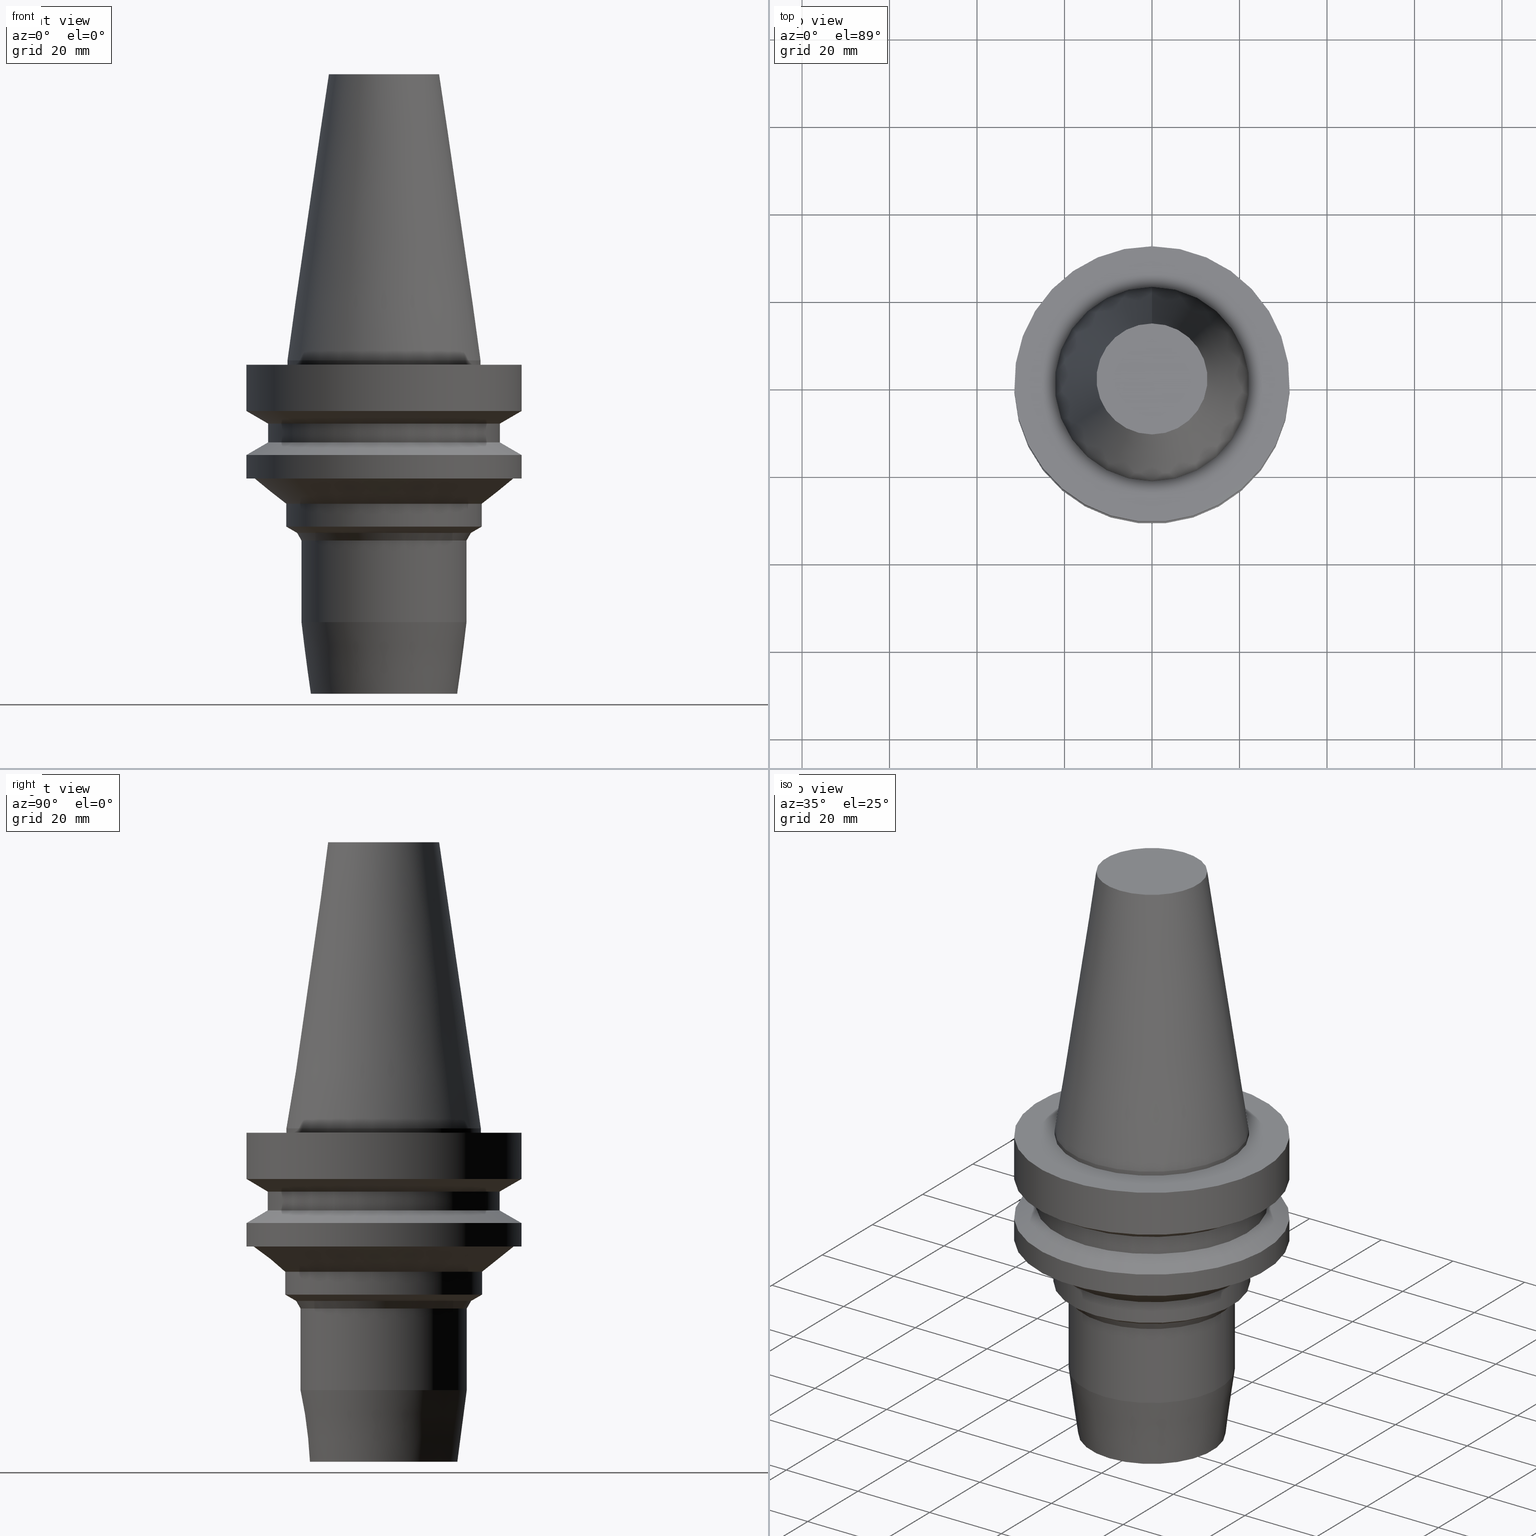
[diagram: canonical four-view strip — front | top / right | iso, engineering-drawing reading convention]
A machine part, canonical four-view strip (front | top / right | iso — engineering-drawing reading convention). The complete STEP part file that produces these views, byte-faithful:
ISO-10303-21;
HEADER;
FILE_DESCRIPTION((''),'1');
FILE_NAME('V:/90_\X2\53D65F9730C730FC30BF\X0\/00_\X2\6DE18DEF30C730FC30BF\X0\/ALL/BBT-BKUS\X2\FF76FF80FF9BFF78FF9E752852A05DE556F3\X0\201801/BBT40-HDC/BBT40-HDC.625-3.stp','2018-02-07T05:08:07',(''),(''),'Spatial Interop R21 SP3','Kubotek KeyCreator 2011 V10.0.2 (22737)',' ');
FILE_SCHEMA(('automotive_design'));
ENDSEC;
DATA;
#1=MECHANICAL_DESIGN_GEOMETRIC_PRESENTATION_REPRESENTATION(' ',(#10,#11,#12,#13,#14,#15,#16,#17,#18,#19,#20,#21,#22,#23,#24,#25,#26,#27,#28,#29,#30,#31,#32,#33,#34,#35,#36,#37,#38,#39,#40,#41,#42,#43),#6);
#2=PRODUCT_DEFINITION_CONTEXT('',#44,'design');
#3=APPLICATION_PROTOCOL_DEFINITION('INTERNATIONAL STANDARD','automotive_design',1994,#44);
#4=PRODUCT_CATEGORY_RELATIONSHIP('NONE','NONE',#45,#46);
#5=SHAPE_DEFINITION_REPRESENTATION(#47,#48);
#6= (GEOMETRIC_REPRESENTATION_CONTEXT(3)GLOBAL_UNCERTAINTY_ASSIGNED_CONTEXT((#51))GLOBAL_UNIT_ASSIGNED_CONTEXT((#53,#54,#55))REPRESENTATION_CONTEXT('NONE','WORKSPACE'));
#10=STYLED_ITEM('',(#57,#58),#59);
#11=STYLED_ITEM('',(#60,#61),#62);
#12=STYLED_ITEM('',(#63,#64),#65);
#13=STYLED_ITEM('',(#66,#67),#68);
#14=STYLED_ITEM('',(#69,#70),#71);
#15=STYLED_ITEM('',(#72),#73);
#16=STYLED_ITEM('',(#74),#75);
#17=STYLED_ITEM('',(#76),#77);
#18=STYLED_ITEM('',(#78),#79);
#19=STYLED_ITEM('',(#80),#81);
#20=STYLED_ITEM('',(#82),#83);
#21=STYLED_ITEM('',(#84,#85),#86);
#22=STYLED_ITEM('',(#87,#88),#89);
#23=STYLED_ITEM('',(#90,#91),#92);
#24=STYLED_ITEM('',(#93),#94);
#25=STYLED_ITEM('',(#95,#96),#97);
#26=STYLED_ITEM('',(#98),#99);
#27=STYLED_ITEM('',(#100,#101),#102);
#28=STYLED_ITEM('',(#103,#104),#105);
#29=STYLED_ITEM('',(#106),#107);
#30=STYLED_ITEM('',(#108,#109),#110);
#31=STYLED_ITEM('',(#111,#112),#113);
#32=STYLED_ITEM('',(#114),#115);
#33=STYLED_ITEM('',(#116),#117);
#34=STYLED_ITEM('',(#118),#119);
#35=STYLED_ITEM('',(#120),#121);
#36=STYLED_ITEM('',(#122,#123),#124);
#37=STYLED_ITEM('',(#125,#126),#127);
#38=STYLED_ITEM('',(#128,#129),#130);
#39=STYLED_ITEM('',(#131),#132);
#40=STYLED_ITEM('',(#133),#134);
#41=STYLED_ITEM('',(#135,#136),#137);
#42=STYLED_ITEM('',(#138),#139);
#43=STYLED_ITEM('',(#140,#141),#142);
#44=APPLICATION_CONTEXT(' ');
#45=PRODUCT_CATEGORY('part','NONE');
#46=PRODUCT_RELATED_PRODUCT_CATEGORY('detail',' ',(#143));
#47=PRODUCT_DEFINITION_SHAPE('NONE','NONE',#144);
#48=ADVANCED_BREP_SHAPE_REPRESENTATION('Unnamed[1]',(#142,#145),#6);
#51=UNCERTAINTY_MEASURE_WITH_UNIT(LENGTH_MEASURE(1.0E-006),#53,'','');
#53= (CONVERSION_BASED_UNIT('MILLIMETRE',#148)LENGTH_UNIT()NAMED_UNIT(#151));
#54= (NAMED_UNIT(#153)PLANE_ANGLE_UNIT()SI_UNIT($,.RADIAN.));
#55= (NAMED_UNIT(#153)SOLID_ANGLE_UNIT()SI_UNIT($,.STERADIAN.));
#57=PRESENTATION_STYLE_ASSIGNMENT((#159));
#58=PRESENTATION_STYLE_ASSIGNMENT((#160));
#59=ADVANCED_FACE('Unnamed[1]',(#161,#162),#163,.T.);
#60=PRESENTATION_STYLE_ASSIGNMENT((#164));
#61=PRESENTATION_STYLE_ASSIGNMENT((#165));
#62=ADVANCED_FACE('Unnamed[1]',(#166,#167),#168,.T.);
#63=PRESENTATION_STYLE_ASSIGNMENT((#169));
#64=PRESENTATION_STYLE_ASSIGNMENT((#170));
#65=ADVANCED_FACE('Unnamed[1]',(#171,#172),#173,.T.);
#66=PRESENTATION_STYLE_ASSIGNMENT((#174));
#67=PRESENTATION_STYLE_ASSIGNMENT((#175));
#68=ADVANCED_FACE('Unnamed[1]',(#176,#177),#178,.T.);
#69=PRESENTATION_STYLE_ASSIGNMENT((#179));
#70=PRESENTATION_STYLE_ASSIGNMENT((#180));
#71=ADVANCED_FACE('Unnamed[1]',(#181,#182),#183,.T.);
#72=PRESENTATION_STYLE_ASSIGNMENT((#184));
#73=EDGE_CURVE('Unnamed[1]',#185,#185,#186,.T.);
#74=PRESENTATION_STYLE_ASSIGNMENT((#187));
#75=EDGE_CURVE('Unnamed[1]',#188,#188,#189,.T.);
#76=PRESENTATION_STYLE_ASSIGNMENT((#190));
#77=EDGE_CURVE('Unnamed[1]',#191,#191,#192,.T.);
#78=PRESENTATION_STYLE_ASSIGNMENT((#193));
#79=EDGE_CURVE('Unnamed[1]',#194,#194,#195,.T.);
#80=PRESENTATION_STYLE_ASSIGNMENT((#196));
#81=EDGE_CURVE('Unnamed[1]',#197,#197,#198,.T.);
#82=PRESENTATION_STYLE_ASSIGNMENT((#199));
#83=EDGE_CURVE('Unnamed[1]',#200,#200,#201,.T.);
#84=PRESENTATION_STYLE_ASSIGNMENT((#202));
#85=PRESENTATION_STYLE_ASSIGNMENT((#203));
#86=ADVANCED_FACE('Unnamed[1]',(#204,#205),#206,.T.);
#87=PRESENTATION_STYLE_ASSIGNMENT((#207));
#88=PRESENTATION_STYLE_ASSIGNMENT((#208));
#89=ADVANCED_FACE('Unnamed[1]',(#209,#210),#211,.T.);
#90=PRESENTATION_STYLE_ASSIGNMENT((#212));
#91=PRESENTATION_STYLE_ASSIGNMENT((#213));
#92=ADVANCED_FACE('Unnamed[1]',(#214),#215,.T.);
#93=PRESENTATION_STYLE_ASSIGNMENT((#216));
#94=EDGE_CURVE('Unnamed[1]',#217,#217,#218,.T.);
#95=PRESENTATION_STYLE_ASSIGNMENT((#219));
#96=PRESENTATION_STYLE_ASSIGNMENT((#220));
#97=ADVANCED_FACE('Unnamed[1]',(#221,#222),#223,.T.);
#98=PRESENTATION_STYLE_ASSIGNMENT((#224));
#99=EDGE_CURVE('Unnamed[1]',#225,#225,#226,.T.);
#100=PRESENTATION_STYLE_ASSIGNMENT((#227));
#101=PRESENTATION_STYLE_ASSIGNMENT((#228));
#102=ADVANCED_FACE('Unnamed[1]',(#229,#230),#231,.T.);
#103=PRESENTATION_STYLE_ASSIGNMENT((#232));
#104=PRESENTATION_STYLE_ASSIGNMENT((#233));
#105=ADVANCED_FACE('Unnamed[1]',(#234,#235),#236,.T.);
#106=PRESENTATION_STYLE_ASSIGNMENT((#237));
#107=EDGE_CURVE('Unnamed[1]',#238,#238,#239,.T.);
#108=PRESENTATION_STYLE_ASSIGNMENT((#240));
#109=PRESENTATION_STYLE_ASSIGNMENT((#241));
#110=ADVANCED_FACE('Unnamed[1]',(#242),#243,.T.);
#111=PRESENTATION_STYLE_ASSIGNMENT((#244));
#112=PRESENTATION_STYLE_ASSIGNMENT((#245));
#113=ADVANCED_FACE('Unnamed[1]',(#246,#247),#248,.T.);
#114=PRESENTATION_STYLE_ASSIGNMENT((#249));
#115=EDGE_CURVE('Unnamed[1]',#250,#250,#251,.T.);
#116=PRESENTATION_STYLE_ASSIGNMENT((#252));
#117=EDGE_CURVE('Unnamed[1]',#253,#253,#254,.T.);
#118=PRESENTATION_STYLE_ASSIGNMENT((#255));
#119=EDGE_CURVE('Unnamed[1]',#256,#256,#257,.T.);
#120=PRESENTATION_STYLE_ASSIGNMENT((#258));
#121=EDGE_CURVE('Unnamed[1]',#259,#259,#260,.T.);
#122=PRESENTATION_STYLE_ASSIGNMENT((#261));
#123=PRESENTATION_STYLE_ASSIGNMENT((#262));
#124=ADVANCED_FACE('Unnamed[1]',(#263,#264),#265,.T.);
#125=PRESENTATION_STYLE_ASSIGNMENT((#266));
#126=PRESENTATION_STYLE_ASSIGNMENT((#267));
#127=ADVANCED_FACE('Unnamed[1]',(#268,#269),#270,.T.);
#128=PRESENTATION_STYLE_ASSIGNMENT((#271));
#129=PRESENTATION_STYLE_ASSIGNMENT((#272));
#130=ADVANCED_FACE('Unnamed[1]',(#273,#274),#275,.T.);
#131=PRESENTATION_STYLE_ASSIGNMENT((#276));
#132=EDGE_CURVE('Unnamed[1]',#277,#277,#278,.T.);
#133=PRESENTATION_STYLE_ASSIGNMENT((#279));
#134=EDGE_CURVE('Unnamed[1]',#280,#280,#281,.T.);
#135=PRESENTATION_STYLE_ASSIGNMENT((#282));
#136=PRESENTATION_STYLE_ASSIGNMENT((#283));
#137=ADVANCED_FACE('Unnamed[1]',(#284,#285),#286,.T.);
#138=PRESENTATION_STYLE_ASSIGNMENT((#287));
#139=EDGE_CURVE('Unnamed[1]',#288,#288,#289,.T.);
#140=PRESENTATION_STYLE_ASSIGNMENT((#290));
#141=PRESENTATION_STYLE_ASSIGNMENT((#291));
#142=MANIFOLD_SOLID_BREP('Unnamed[1]',#292);
#143=PRODUCT('Unnamed[1]','Unnamed[1]','PART-Unnamed[1]-DESC',(#293));
#144=PRODUCT_DEFINITION('NONE','NONE',#294,#2);
#145=AXIS2_PLACEMENT_3D('',#295,#296,#297);
#148=LENGTH_MEASURE_WITH_UNIT(LENGTH_MEASURE(1.0),#298);
#151=DIMENSIONAL_EXPONENTS(1.0,0.0,0.0,0.0,0.0,0.0,0.0);
#153=DIMENSIONAL_EXPONENTS(0.0,0.0,0.0,0.0,0.0,0.0,0.0);
#159=SURFACE_STYLE_USAGE(.BOTH.,#299);
#160=CURVE_STYLE('',#300,POSITIVE_LENGTH_MEASURE(1000.0),#301);
#161=FACE_BOUND('',#302,.T.);
#162=FACE_OUTER_BOUND('',#303,.T.);
#163=PLANE('',#304);
#164=SURFACE_STYLE_USAGE(.BOTH.,#305);
#165=CURVE_STYLE('',#306,POSITIVE_LENGTH_MEASURE(1000.0),#307);
#166=FACE_BOUND('',#308,.T.);
#167=FACE_BOUND('',#309,.T.);
#168=CYLINDRICAL_SURFACE('',#310,31.5);
#169=SURFACE_STYLE_USAGE(.BOTH.,#311);
#170=CURVE_STYLE('',#312,POSITIVE_LENGTH_MEASURE(1000.0),#313);
#171=FACE_BOUND('',#314,.T.);
#172=FACE_BOUND('',#315,.T.);
#173=CONICAL_SURFACE('',#316,21.2500000000002,1.0471975511966);
#174=SURFACE_STYLE_USAGE(.BOTH.,#317);
#175=CURVE_STYLE('',#318,POSITIVE_LENGTH_MEASURE(1000.0),#319);
#176=FACE_BOUND('',#320,.T.);
#177=FACE_BOUND('',#321,.T.);
#178=CYLINDRICAL_SURFACE('',#322,26.4999999999997);
#179=SURFACE_STYLE_USAGE(.BOTH.,#323);
#180=CURVE_STYLE('',#324,POSITIVE_LENGTH_MEASURE(1000.0),#325);
#181=FACE_BOUND('',#326,.T.);
#182=FACE_BOUND('',#327,.T.);
#183=CONICAL_SURFACE('',#328,17.9227653025982,0.13089969389958);
#184=CURVE_STYLE('',#329,POSITIVE_LENGTH_MEASURE(1000.0),#330);
#185=VERTEX_POINT('',#331);
#186=CIRCLE('',#332,22.225);
#187=CURVE_STYLE('',#333,POSITIVE_LENGTH_MEASURE(1000.0),#334);
#188=VERTEX_POINT('',#335);
#189=CIRCLE('',#336,31.4999999999997);
#190=CURVE_STYLE('',#337,POSITIVE_LENGTH_MEASURE(1000.0),#338);
#191=VERTEX_POINT('',#339);
#192=CIRCLE('',#340,12.6875000000001);
#193=CURVE_STYLE('',#341,POSITIVE_LENGTH_MEASURE(1000.0),#342);
#194=VERTEX_POINT('',#343);
#195=CIRCLE('',#344,31.5000000000004);
#196=CURVE_STYLE('',#345,POSITIVE_LENGTH_MEASURE(1000.0),#346);
#197=VERTEX_POINT('',#347);
#198=CIRCLE('',#348,29.7143593539463);
#199=CURVE_STYLE('',#349,POSITIVE_LENGTH_MEASURE(1000.0),#350);
#200=VERTEX_POINT('',#351);
#201=CIRCLE('',#352,16.8455306051985);
#202=SURFACE_STYLE_USAGE(.BOTH.,#353);
#203=CURVE_STYLE('',#354,POSITIVE_LENGTH_MEASURE(1000.0),#355);
#204=FACE_BOUND('',#356,.T.);
#205=FACE_BOUND('',#357,.T.);
#206=CONICAL_SURFACE('',#358,19.5000000000007,0.523598775600471);
#207=SURFACE_STYLE_USAGE(.BOTH.,#359);
#208=CURVE_STYLE('',#360,POSITIVE_LENGTH_MEASURE(1000.0),#361);
#209=FACE_BOUND('',#362,.T.);
#210=FACE_BOUND('',#363,.T.);
#211=CYLINDRICAL_SURFACE('',#364,22.4999999999983);
#212=SURFACE_STYLE_USAGE(.BOTH.,#365);
#213=CURVE_STYLE('',#366,POSITIVE_LENGTH_MEASURE(1000.0),#367);
#214=FACE_OUTER_BOUND('',#368,.T.);
#215=PLANE('',#369);
#216=CURVE_STYLE('',#370,POSITIVE_LENGTH_MEASURE(1000.0),#371);
#217=VERTEX_POINT('',#372);
#218=CIRCLE('',#373,22.4999999999993);
#219=SURFACE_STYLE_USAGE(.BOTH.,#374);
#220=CURVE_STYLE('',#375,POSITIVE_LENGTH_MEASURE(1000.0),#376);
#221=FACE_BOUND('',#377,.T.);
#222=FACE_BOUND('',#378,.T.);
#223=CYLINDRICAL_SURFACE('',#379,22.225);
#224=CURVE_STYLE('',#380,POSITIVE_LENGTH_MEASURE(1000.0),#381);
#225=VERTEX_POINT('',#382);
#226=CIRCLE('',#383,22.225);
#227=SURFACE_STYLE_USAGE(.BOTH.,#384);
#228=CURVE_STYLE('',#385,POSITIVE_LENGTH_MEASURE(1000.0),#386);
#229=FACE_BOUND('',#387,.T.);
#230=FACE_BOUND('',#388,.T.);
#231=CONICAL_SURFACE('',#389,29.0000000000004,1.04719755119651);
#232=SURFACE_STYLE_USAGE(.BOTH.,#390);
#233=CURVE_STYLE('',#391,POSITIVE_LENGTH_MEASURE(1000.0),#392);
#234=FACE_BOUND('',#393,.T.);
#235=FACE_BOUND('',#394,.T.);
#236=CONICAL_SURFACE('',#395,26.1071796769728,0.895885082770081);
#237=CURVE_STYLE('',#396,POSITIVE_LENGTH_MEASURE(1000.0),#397);
#238=VERTEX_POINT('',#398);
#239=CIRCLE('',#399,22.4999999999973);
#240=SURFACE_STYLE_USAGE(.BOTH.,#400);
#241=CURVE_STYLE('',#401,POSITIVE_LENGTH_MEASURE(1000.0),#402);
#242=FACE_OUTER_BOUND('',#403,.T.);
#243=PLANE('',#404);
#244=SURFACE_STYLE_USAGE(.BOTH.,#405);
#245=CURVE_STYLE('',#406,POSITIVE_LENGTH_MEASURE(1000.0),#407);
#246=FACE_BOUND('',#408,.T.);
#247=FACE_BOUND('',#409,.T.);
#248=CYLINDRICAL_SURFACE('',#410,31.5000000000005);
#249=CURVE_STYLE('',#411,POSITIVE_LENGTH_MEASURE(1000.0),#412);
#250=VERTEX_POINT('',#413);
#251=CIRCLE('',#414,18.9999999999979);
#252=CURVE_STYLE('',#415,POSITIVE_LENGTH_MEASURE(1000.0),#416);
#253=VERTEX_POINT('',#417);
#254=CIRCLE('',#418,26.4999999999994);
#255=CURVE_STYLE('',#419,POSITIVE_LENGTH_MEASURE(1000.0),#420);
#256=VERTEX_POINT('',#421);
#257=CIRCLE('',#422,26.5);
#258=CURVE_STYLE('',#423,POSITIVE_LENGTH_MEASURE(1000.0),#424);
#259=VERTEX_POINT('',#425);
#260=CIRCLE('',#426,31.5000000000007);
#261=SURFACE_STYLE_USAGE(.BOTH.,#427);
#262=CURVE_STYLE('',#428,POSITIVE_LENGTH_MEASURE(1000.0),#429);
#263=FACE_BOUND('',#430,.T.);
#264=FACE_BOUND('',#431,.T.);
#265=CONICAL_SURFACE('',#432,28.9999999999999,1.04719755119657);
#266=SURFACE_STYLE_USAGE(.BOTH.,#433);
#267=CURVE_STYLE('',#434,POSITIVE_LENGTH_MEASURE(1000.0),#435);
#268=FACE_BOUND('',#436,.T.);
#269=FACE_BOUND('',#437,.T.);
#270=CYLINDRICAL_SURFACE('',#438,18.999999999998);
#271=SURFACE_STYLE_USAGE(.BOTH.,#439);
#272=CURVE_STYLE('',#440,POSITIVE_LENGTH_MEASURE(1000.0),#441);
#273=FACE_OUTER_BOUND('',#442,.T.);
#274=FACE_BOUND('',#443,.T.);
#275=PLANE('',#444);
#276=CURVE_STYLE('',#445,POSITIVE_LENGTH_MEASURE(1000.0),#446);
#277=VERTEX_POINT('',#447);
#278=CIRCLE('',#448,31.5000000000004);
#279=CURVE_STYLE('',#449,POSITIVE_LENGTH_MEASURE(1000.0),#450);
#280=VERTEX_POINT('',#451);
#281=CIRCLE('',#452,20.0000000000032);
#282=SURFACE_STYLE_USAGE(.BOTH.,#453);
#283=CURVE_STYLE('',#454,POSITIVE_LENGTH_MEASURE(1000.0),#455);
#284=FACE_BOUND('',#456,.T.);
#285=FACE_BOUND('',#457,.T.);
#286=CONICAL_SURFACE('',#458,17.4562500000001,0.144812498238936);
#287=CURVE_STYLE('',#459,POSITIVE_LENGTH_MEASURE(1000.0),#460);
#288=VERTEX_POINT('',#461);
#289=CIRCLE('',#462,18.9999999999981);
#290=SURFACE_STYLE_USAGE(.BOTH.,#463);
#291=CURVE_STYLE('',#464,POSITIVE_LENGTH_MEASURE(1000.0),#465);
#292=CLOSED_SHELL('',(#110,#137,#97,#130,#62,#124,#68,#102,#113,#59,#105,#89,#65,#86,#127,#71,#92));
#293=PRODUCT_CONTEXT('',#44,'mechanical');
#294=PRODUCT_DEFINITION_FORMATION_WITH_SPECIFIED_SOURCE(' ','NONE',#143,.NOT_KNOWN.);
#295=CARTESIAN_POINT('',(0.0,0.0,0.0));
#296=DIRECTION('',(0.0,0.0,1.0));
#297=DIRECTION('',(1.0,0.0,0.0));
#298= (NAMED_UNIT(#151)LENGTH_UNIT()SI_UNIT(.MILLI.,.METRE.));
#299=SURFACE_SIDE_STYLE('',(#467));
#300=DRAUGHTING_PRE_DEFINED_CURVE_FONT('continuous');
#301=COLOUR_RGB('',0.0,1.0,0.0);
#302=EDGE_LOOP('',(#468));
#303=EDGE_LOOP('',(#469));
#304=AXIS2_PLACEMENT_3D('',#470,#471,#472);
#305=SURFACE_SIDE_STYLE('',(#473));
#306=DRAUGHTING_PRE_DEFINED_CURVE_FONT('continuous');
#307=COLOUR_RGB('',0.0,1.0,0.0);
#308=EDGE_LOOP('',(#474));
#309=EDGE_LOOP('',(#475));
#310=AXIS2_PLACEMENT_3D('',#476,#477,#478);
#311=SURFACE_SIDE_STYLE('',(#479));
#312=DRAUGHTING_PRE_DEFINED_CURVE_FONT('continuous');
#313=COLOUR_RGB('',0.0,1.0,0.0);
#314=EDGE_LOOP('',(#480));
#315=EDGE_LOOP('',(#481));
#316=AXIS2_PLACEMENT_3D('',#482,#483,#484);
#317=SURFACE_SIDE_STYLE('',(#485));
#318=DRAUGHTING_PRE_DEFINED_CURVE_FONT('continuous');
#319=COLOUR_RGB('',0.0,1.0,0.0);
#320=EDGE_LOOP('',(#486));
#321=EDGE_LOOP('',(#487));
#322=AXIS2_PLACEMENT_3D('',#488,#489,#490);
#323=SURFACE_SIDE_STYLE('',(#491));
#324=DRAUGHTING_PRE_DEFINED_CURVE_FONT('continuous');
#325=COLOUR_RGB('',0.0,1.0,0.0);
#326=EDGE_LOOP('',(#492));
#327=EDGE_LOOP('',(#493));
#328=AXIS2_PLACEMENT_3D('',#494,#495,#496);
#329=DRAUGHTING_PRE_DEFINED_CURVE_FONT('continuous');
#330=COLOUR_RGB('',0.0,1.0,0.0);
#331=CARTESIAN_POINT('',(6.12323399573622E-017,22.2250000000001,-0.999999999999912));
#332=AXIS2_PLACEMENT_3D('',#497,#498,#499);
#333=DRAUGHTING_PRE_DEFINED_CURVE_FONT('continuous');
#334=COLOUR_RGB('',0.0,1.0,0.0);
#335=CARTESIAN_POINT('',(6.12323399573568E-017,31.4999999999997,-0.999999999999825));
#336=AXIS2_PLACEMENT_3D('',#500,#501,#502);
#337=DRAUGHTING_PRE_DEFINED_CURVE_FONT('continuous');
#338=COLOUR_RGB('',0.0,1.0,0.0);
#339=CARTESIAN_POINT('',(-4.00459503321185E-015,12.6875000000002,65.4000000000001));
#340=AXIS2_PLACEMENT_3D('',#503,#504,#505);
#341=DRAUGHTING_PRE_DEFINED_CURVE_FONT('continuous');
#342=COLOUR_RGB('',0.0,1.0,0.0);
#343=CARTESIAN_POINT('',(1.65327317884891E-015,31.5000000000004,-26.9999999999998));
#344=AXIS2_PLACEMENT_3D('',#506,#507,#508);
#345=DRAUGHTING_PRE_DEFINED_CURVE_FONT('continuous');
#346=COLOUR_RGB('',0.0,1.0,0.0);
#347=CARTESIAN_POINT('',(1.65327317884891E-015,29.7143593539463,-26.9999999999998));
#348=AXIS2_PLACEMENT_3D('',#509,#510,#511);
#349=DRAUGHTING_PRE_DEFINED_CURVE_FONT('continuous');
#350=COLOUR_RGB('',0.0,1.0,0.0);
#351=CARTESIAN_POINT('',(4.66590430475147E-015,16.8455306051985,-76.2000000000008));
#352=AXIS2_PLACEMENT_3D('',#512,#513,#514);
#353=SURFACE_SIDE_STYLE('',(#515));
#354=DRAUGHTING_PRE_DEFINED_CURVE_FONT('continuous');
#355=COLOUR_RGB('',0.0,1.0,0.0);
#356=EDGE_LOOP('',(#516));
#357=EDGE_LOOP('',(#517));
#358=AXIS2_PLACEMENT_3D('',#518,#519,#520);
#359=SURFACE_SIDE_STYLE('',(#521));
#360=DRAUGHTING_PRE_DEFINED_CURVE_FONT('continuous');
#361=COLOUR_RGB('',0.0,1.0,0.0);
#362=EDGE_LOOP('',(#522));
#363=EDGE_LOOP('',(#523));
#364=AXIS2_PLACEMENT_3D('',#524,#525,#526);
#365=SURFACE_SIDE_STYLE('',(#527));
#366=DRAUGHTING_PRE_DEFINED_CURVE_FONT('continuous');
#367=COLOUR_RGB('',0.0,1.0,0.0);
#368=EDGE_LOOP('',(#528));
#369=AXIS2_PLACEMENT_3D('',#529,#530,#531);
#370=DRAUGHTING_PRE_DEFINED_CURVE_FONT('continuous');
#371=COLOUR_RGB('',0.0,1.0,0.0);
#372=CARTESIAN_POINT('',(2.00679825842389E-015,22.4999999999993,-32.7735026918962));
#373=AXIS2_PLACEMENT_3D('',#532,#533,#534);
#374=SURFACE_SIDE_STYLE('',(#535));
#375=DRAUGHTING_PRE_DEFINED_CURVE_FONT('continuous');
#376=COLOUR_RGB('',0.0,1.0,0.0);
#377=EDGE_LOOP('',(#536));
#378=EDGE_LOOP('',(#537));
#379=AXIS2_PLACEMENT_3D('',#538,#539,#540);
#380=DRAUGHTING_PRE_DEFINED_CURVE_FONT('continuous');
#381=COLOUR_RGB('',0.0,1.0,0.0);
#382=CARTESIAN_POINT('',(1.71319921032766E-029,22.2250000000001,-2.8153873565375E-013));
#383=AXIS2_PLACEMENT_3D('',#541,#542,#543);
#384=SURFACE_SIDE_STYLE('',(#544));
#385=DRAUGHTING_PRE_DEFINED_CURVE_FONT('continuous');
#386=COLOUR_RGB('',0.0,1.0,0.0);
#387=EDGE_LOOP('',(#545));
#388=EDGE_LOOP('',(#546));
#389=AXIS2_PLACEMENT_3D('',#547,#548,#549);
#390=SURFACE_SIDE_STYLE('',(#550));
#391=DRAUGHTING_PRE_DEFINED_CURVE_FONT('continuous');
#392=COLOUR_RGB('',0.0,1.0,0.0);
#393=EDGE_LOOP('',(#551));
#394=EDGE_LOOP('',(#552));
#395=AXIS2_PLACEMENT_3D('',#553,#554,#555);
#396=DRAUGHTING_PRE_DEFINED_CURVE_FONT('continuous');
#397=COLOUR_RGB('',0.0,1.0,0.0);
#398=CARTESIAN_POINT('',(2.32682891837599E-015,22.4999999999973,-37.999999999935));
#399=AXIS2_PLACEMENT_3D('',#556,#557,#558);
#400=SURFACE_SIDE_STYLE('',(#559));
#401=DRAUGHTING_PRE_DEFINED_CURVE_FONT('continuous');
#402=COLOUR_RGB('',0.0,1.0,0.0);
#403=EDGE_LOOP('',(#560));
#404=AXIS2_PLACEMENT_3D('',#561,#562,#563);
#405=SURFACE_SIDE_STYLE('',(#564));
#406=DRAUGHTING_PRE_DEFINED_CURVE_FONT('continuous');
#407=COLOUR_RGB('',0.0,1.0,0.0);
#408=EDGE_LOOP('',(#565));
#409=EDGE_LOOP('',(#566));
#410=AXIS2_PLACEMENT_3D('',#567,#568,#569);
#411=DRAUGHTING_PRE_DEFINED_CURVE_FONT('continuous');
#412=COLOUR_RGB('',0.0,1.0,0.0);
#413=CARTESIAN_POINT('',(3.66384809748111E-015,18.9999999999979,-59.8351802337135));
#414=AXIS2_PLACEMENT_3D('',#570,#571,#572);
#415=DRAUGHTING_PRE_DEFINED_CURVE_FONT('continuous');
#416=COLOUR_RGB('',0.0,1.0,0.0);
#417=CARTESIAN_POINT('',(8.8494551369045E-016,26.4999999999995,-14.4522569986152));
#418=AXIS2_PLACEMENT_3D('',#573,#574,#575);
#419=DRAUGHTING_PRE_DEFINED_CURVE_FONT('continuous');
#420=COLOUR_RGB('',0.0,1.0,0.0);
#421=CARTESIAN_POINT('',(1.1479681728942E-015,26.5,-18.7477430013855));
#422=AXIS2_PLACEMENT_3D('',#576,#577,#578);
#423=DRAUGHTING_PRE_DEFINED_CURVE_FONT('continuous');
#424=COLOUR_RGB('',0.0,1.0,0.0);
#425=CARTESIAN_POINT('',(1.32473071268174E-015,31.5000000000007,-21.6344943473346));
#426=AXIS2_PLACEMENT_3D('',#579,#580,#581);
#427=SURFACE_SIDE_STYLE('',(#582));
#428=DRAUGHTING_PRE_DEFINED_CURVE_FONT('continuous');
#429=COLOUR_RGB('',0.0,1.0,0.0);
#430=EDGE_LOOP('',(#583));
#431=EDGE_LOOP('',(#584));
#432=AXIS2_PLACEMENT_3D('',#585,#586,#587);
#433=SURFACE_SIDE_STYLE('',(#588));
#434=DRAUGHTING_PRE_DEFINED_CURVE_FONT('continuous');
#435=COLOUR_RGB('',0.0,1.0,0.0);
#436=EDGE_LOOP('',(#589));
#437=EDGE_LOOP('',(#590));
#438=AXIS2_PLACEMENT_3D('',#591,#592,#593);
#439=SURFACE_SIDE_STYLE('',(#594));
#440=DRAUGHTING_PRE_DEFINED_CURVE_FONT('continuous');
#441=COLOUR_RGB('',0.0,1.0,0.0);
#442=EDGE_LOOP('',(#595));
#443=EDGE_LOOP('',(#596));
#444=AXIS2_PLACEMENT_3D('',#597,#598,#599);
#445=DRAUGHTING_PRE_DEFINED_CURVE_FONT('continuous');
#446=COLOUR_RGB('',0.0,1.0,0.0);
#447=CARTESIAN_POINT('',(7.08182973902924E-016,31.5000000000004,-11.5655056526664));
#448=AXIS2_PLACEMENT_3D('',#600,#601,#602);
#449=DRAUGHTING_PRE_DEFINED_CURVE_FONT('continuous');
#450=COLOUR_RGB('',0.0,1.0,0.0);
#451=CARTESIAN_POINT('',(2.41521018826952E-015,20.0000000000032,-39.4433756729057));
#452=AXIS2_PLACEMENT_3D('',#603,#604,#605);
#453=SURFACE_SIDE_STYLE('',(#606));
#454=DRAUGHTING_PRE_DEFINED_CURVE_FONT('continuous');
#455=COLOUR_RGB('',0.0,1.0,0.0);
#456=EDGE_LOOP('',(#607));
#457=EDGE_LOOP('',(#608));
#458=AXIS2_PLACEMENT_3D('',#609,#610,#611);
#459=DRAUGHTING_PRE_DEFINED_CURVE_FONT('continuous');
#460=COLOUR_RGB('',0.0,1.0,0.0);
#461=CARTESIAN_POINT('',(2.52126771214201E-015,18.9999999999982,-41.1754264804745));
#462=AXIS2_PLACEMENT_3D('',#612,#613,#614);
#463=SURFACE_SIDE_STYLE('',(#615));
#464=DRAUGHTING_PRE_DEFINED_CURVE_FONT('continuous');
#465=COLOUR_RGB('',0.0,1.0,0.0);
#467=SURFACE_STYLE_FILL_AREA(#616);
#468=ORIENTED_EDGE('',*,*,#81,.F.);
#469=ORIENTED_EDGE('',*,*,#79,.T.);
#470=CARTESIAN_POINT('',(1.65327317884891E-015,30.6071796769733,-26.9999999999998));
#471=DIRECTION('',(6.12323399573677E-017,6.09126980313703E-015,-1.0));
#472=DIRECTION('',(-3.77809856088504E-031,1.0,6.09126980313703E-015));
#473=SURFACE_STYLE_FILL_AREA(#617);
#474=ORIENTED_EDGE('',*,*,#132,.F.);
#475=ORIENTED_EDGE('',*,*,#75,.T.);
#476=CARTESIAN_POINT('',(3.84707656930139E-016,2.84402033448639E-014,-6.28275282633307));
#477=DIRECTION('',(6.12323399573677E-017,-6.70422349373967E-016,-1.0));
#478=DIRECTION('',(3.62243764811148E-032,1.0,-6.70422349373967E-016));
#479=SURFACE_STYLE_FILL_AREA(#618);
#480=ORIENTED_EDGE('',*,*,#134,.F.);
#481=ORIENTED_EDGE('',*,*,#107,.T.);
#482=CARTESIAN_POINT('',(2.37101955332276E-015,6.69241632421178E-015,-38.7216878364203));
#483=DIRECTION('',(-6.12323399573677E-017,6.70422349373967E-016,1.0));
#484=DIRECTION('',(3.62243764811148E-032,1.0,-6.70422349373967E-016));
#485=SURFACE_STYLE_FILL_AREA(#619);
#486=ORIENTED_EDGE('',*,*,#119,.F.);
#487=ORIENTED_EDGE('',*,*,#117,.T.);
#488=CARTESIAN_POINT('',(1.01645684329232E-015,2.1523290255622E-014,-16.6000000000003));
#489=DIRECTION('',(6.12323399573677E-017,-6.70422349373967E-016,-1.0));
#490=DIRECTION('',(3.62243764811148E-032,1.0,-6.70422349373967E-016));
#491=SURFACE_STYLE_FILL_AREA(#620);
#492=ORIENTED_EDGE('',*,*,#83,.F.);
#493=ORIENTED_EDGE('',*,*,#115,.T.);
#494=CARTESIAN_POINT('',(4.16487620111629E-015,-1.29482113096688E-014,-68.0175901168572));
#495=DIRECTION('',(-6.12323399573677E-017,6.70422349373967E-016,1.0));
#496=DIRECTION('',(3.62243764811148E-032,1.0,-6.70422349373967E-016));
#497=CARTESIAN_POINT('',(6.12323399573616E-017,3.19818789058561E-014,-0.999999999999901));
#498=DIRECTION('',(6.12323399573676E-017,-6.70422349373967E-016,-1.0));
#499=DIRECTION('',(3.62243764811148E-032,1.0,-6.70422349373967E-016));
#500=CARTESIAN_POINT('',(6.12323399573555E-017,3.19818789058562E-014,-0.999999999999801));
#501=DIRECTION('',(6.12323399573677E-017,-6.70422349373967E-016,-1.0));
#502=DIRECTION('',(3.62243764811148E-032,1.0,-6.70422349373967E-016));
#503=CARTESIAN_POINT('',(-4.00459503321185E-015,7.64979229042875E-014,65.4000000000001));
#504=DIRECTION('',(6.12323399573677E-017,-6.70422349373967E-016,-1.0));
#505=DIRECTION('',(3.62243764811148E-032,1.0,-6.70422349373967E-016));
#506=CARTESIAN_POINT('',(1.65327317884891E-015,1.45508978221331E-014,-26.9999999999997));
#507=DIRECTION('',(6.12323399573676E-017,-6.70422349373967E-016,-1.0));
#508=DIRECTION('',(3.62243764811148E-032,1.0,-6.70422349373967E-016));
#509=CARTESIAN_POINT('',(1.65327317884891E-015,1.45508978221331E-014,-26.9999999999998));
#510=DIRECTION('',(6.12323399573676E-017,-6.70422349373967E-016,-1.0));
#511=DIRECTION('',(3.62243764811148E-032,1.0,-6.70422349373967E-016));
#512=CARTESIAN_POINT('',(4.66590430475147E-015,-1.84338817670668E-014,-76.2000000000008));
#513=DIRECTION('',(6.12323399573677E-017,-6.70422349373967E-016,-1.0));
#514=DIRECTION('',(3.62243764811148E-032,1.0,-6.70422349373967E-016));
#515=SURFACE_STYLE_FILL_AREA(#621);
#516=ORIENTED_EDGE('',*,*,#139,.F.);
#517=ORIENTED_EDGE('',*,*,#134,.T.);
#518=CARTESIAN_POINT('',(2.46823895020577E-015,5.62797788353798E-015,-40.3094010766901));
#519=DIRECTION('',(-6.12323399573677E-017,6.70422349373967E-016,1.0));
#520=DIRECTION('',(3.62243764811148E-032,1.0,-6.70422349373967E-016));
#521=SURFACE_STYLE_FILL_AREA(#622);
#522=ORIENTED_EDGE('',*,*,#107,.F.);
#523=ORIENTED_EDGE('',*,*,#94,.T.);
#524=CARTESIAN_POINT('',(2.16681358839994E-015,8.92823228118893E-015,-35.3867513459156));
#525=DIRECTION('',(6.12323399573677E-017,-6.70422349373967E-016,-1.0));
#526=DIRECTION('',(3.62243764811148E-032,1.0,-6.70422349373967E-016));
#527=SURFACE_STYLE_FILL_AREA(#623);
#528=ORIENTED_EDGE('',*,*,#83,.T.);
#529=CARTESIAN_POINT('',(4.66590430475151E-015,8.42276530259923,-76.2000000000016));
#530=DIRECTION('',(6.12323399573677E-017,8.53258554114879E-014,-1.0));
#531=DIRECTION('',(-5.2295289384402E-030,1.0,8.53258554114879E-014));
#532=CARTESIAN_POINT('',(2.00679825842389E-015,1.0680212583315E-014,-32.7735026918962));
#533=DIRECTION('',(6.12323399573677E-017,-6.70422349373967E-016,-1.0));
#534=DIRECTION('',(3.62243764811148E-032,1.0,-6.70422349373967E-016));
#535=SURFACE_STYLE_FILL_AREA(#624);
#536=ORIENTED_EDGE('',*,*,#73,.F.);
#537=ORIENTED_EDGE('',*,*,#99,.T.);
#538=CARTESIAN_POINT('',(3.06161699786891E-017,3.2317090080543E-014,-0.500000000000085));
#539=DIRECTION('',(6.12323399573676E-017,-6.70422349373967E-016,-1.0));
#540=DIRECTION('',(3.62243764811148E-032,1.0,-6.70422349373967E-016));
#541=CARTESIAN_POINT('',(1.65331138531142E-029,3.26523012552299E-014,-2.70006239588838E-013));
#542=DIRECTION('',(6.12323399573676E-017,-6.70422349373967E-016,-1.0));
#543=DIRECTION('',(3.62243764811148E-032,1.0,-6.70422349373967E-016));
#544=SURFACE_STYLE_FILL_AREA(#625);
#545=ORIENTED_EDGE('',*,*,#121,.F.);
#546=ORIENTED_EDGE('',*,*,#119,.T.);
#547=CARTESIAN_POINT('',(1.23634944278797E-015,1.9115724037077E-014,-20.1911186743601));
#548=DIRECTION('',(6.12323399573677E-017,-6.70422349373967E-016,-1.0));
#549=DIRECTION('',(3.62243764811148E-032,1.0,-6.70422349373967E-016));
#550=SURFACE_STYLE_FILL_AREA(#626);
#551=ORIENTED_EDGE('',*,*,#94,.F.);
#552=ORIENTED_EDGE('',*,*,#81,.T.);
#553=CARTESIAN_POINT('',(1.8300357186364E-015,1.2615555202724E-014,-29.886751345948));
#554=DIRECTION('',(-6.12323399573677E-017,6.70422349373967E-016,1.0));
#555=DIRECTION('',(3.62243764811148E-032,1.0,-6.70422349373967E-016));
#556=CARTESIAN_POINT('',(2.32682891837599E-015,7.1762519790629E-015,-37.999999999935));
#557=DIRECTION('',(6.12323399573677E-017,-6.70422349373967E-016,-1.0));
#558=DIRECTION('',(3.62243764811148E-032,1.0,-6.70422349373967E-016));
#559=SURFACE_STYLE_FILL_AREA(#627);
#560=ORIENTED_EDGE('',*,*,#77,.F.);
#561=CARTESIAN_POINT('',(-4.00459503321185E-015,6.34375000000014,65.4000000000001));
#562=DIRECTION('',(-6.12323399573677E-017,9.97602686800683E-016,1.0));
#563=DIRECTION('',(-5.62583941297938E-032,-1.0,9.97602686800683E-016));
#564=SURFACE_STYLE_FILL_AREA(#628);
#565=ORIENTED_EDGE('',*,*,#79,.F.);
#566=ORIENTED_EDGE('',*,*,#121,.T.);
#567=CARTESIAN_POINT('',(1.48900194576533E-015,1.63494752747526E-014,-24.3172471736672));
#568=DIRECTION('',(6.12323399573677E-017,-6.70422349373967E-016,-1.0));
#569=DIRECTION('',(3.62243764811148E-032,1.0,-6.70422349373967E-016));
#570=CARTESIAN_POINT('',(3.66384809748111E-015,-7.4625408522709E-015,-59.8351802337135));
#571=DIRECTION('',(6.12323399573676E-017,-6.70422349373967E-016,-1.0));
#572=DIRECTION('',(3.62243764811148E-032,1.0,-6.70422349373967E-016));
#573=CARTESIAN_POINT('',(8.84945513690449E-016,2.29631851644621E-014,-14.4522569986152));
#574=DIRECTION('',(6.12323399573677E-017,-6.70422349373967E-016,-1.0));
#575=DIRECTION('',(3.62243764811148E-032,1.0,-6.70422349373967E-016));
#576=CARTESIAN_POINT('',(1.1479681728942E-015,2.00833953467818E-014,-18.7477430013855));
#577=DIRECTION('',(6.12323399573677E-017,-6.70422349373967E-016,-1.0));
#578=DIRECTION('',(3.62243764811148E-032,1.0,-6.70422349373967E-016));
#579=CARTESIAN_POINT('',(1.32473071268174E-015,1.81480527273722E-014,-21.6344943473346));
#580=DIRECTION('',(6.12323399573677E-017,-6.70422349373967E-016,-1.0));
#581=DIRECTION('',(3.62243764811148E-032,1.0,-6.70422349373967E-016));
#582=SURFACE_STYLE_FILL_AREA(#629);
#583=ORIENTED_EDGE('',*,*,#117,.F.);
#584=ORIENTED_EDGE('',*,*,#132,.T.);
#585=CARTESIAN_POINT('',(7.96564243796686E-016,2.39308564741669E-014,-13.0088813256408));
#586=DIRECTION('',(-6.12323399573677E-017,6.70422349373967E-016,1.0));
#587=DIRECTION('',(3.62243764811148E-032,1.0,-6.70422349373967E-016));
#588=SURFACE_STYLE_FILL_AREA(#630);
#589=ORIENTED_EDGE('',*,*,#115,.F.);
#590=ORIENTED_EDGE('',*,*,#139,.T.);
#591=CARTESIAN_POINT('',(3.09255790481156E-015,-1.20758287727781E-015,-50.505303357094));
#592=DIRECTION('',(6.12323399573677E-017,-6.70422349373967E-016,-1.0));
#593=DIRECTION('',(3.62243764811148E-032,1.0,-6.70422349373967E-016));
#594=SURFACE_STYLE_FILL_AREA(#631);
#595=ORIENTED_EDGE('',*,*,#75,.F.);
#596=ORIENTED_EDGE('',*,*,#73,.T.);
#597=CARTESIAN_POINT('',(6.12323399573595E-017,26.8624999999999,-0.999999999999869));
#598=DIRECTION('',(-6.12323399573677E-017,-9.35138060429241E-015,1.0));
#599=DIRECTION('',(5.77434068963536E-031,-1.0,-9.35138060429241E-015));
#600=CARTESIAN_POINT('',(7.08182973902922E-016,2.48985277838716E-014,-11.5655056526663));
#601=DIRECTION('',(6.12323399573677E-017,-6.70422349373967E-016,-1.0));
#602=DIRECTION('',(3.62243764811148E-032,1.0,-6.70422349373967E-016));
#603=CARTESIAN_POINT('',(2.41521018826952E-015,6.20858066936068E-015,-39.4433756729057));
#604=DIRECTION('',(6.12323399573676E-017,-6.70422349373967E-016,-1.0));
#605=DIRECTION('',(3.62243764811148E-032,1.0,-6.70422349373967E-016));
#606=SURFACE_STYLE_FILL_AREA(#632);
#607=ORIENTED_EDGE('',*,*,#99,.F.);
#608=ORIENTED_EDGE('',*,*,#77,.T.);
#609=CARTESIAN_POINT('',(-2.00229751660592E-015,5.45751120797587E-014,32.6999999999999));
#610=DIRECTION('',(6.12323399573677E-017,-6.70422349373967E-016,-1.0));
#611=DIRECTION('',(3.62243764811148E-032,1.0,-6.70422349373967E-016));
#612=CARTESIAN_POINT('',(2.52126771214201E-015,5.04737509771528E-015,-41.1754264804745));
#613=DIRECTION('',(6.12323399573677E-017,-6.70422349373967E-016,-1.0));
#614=DIRECTION('',(3.62243764811148E-032,1.0,-6.70422349373967E-016));
#615=SURFACE_STYLE_FILL_AREA(#633);
#616=FILL_AREA_STYLE('',(#634));
#617=FILL_AREA_STYLE('',(#635));
#618=FILL_AREA_STYLE('',(#636));
#619=FILL_AREA_STYLE('',(#637));
#620=FILL_AREA_STYLE('',(#638));
#621=FILL_AREA_STYLE('',(#639));
#622=FILL_AREA_STYLE('',(#640));
#623=FILL_AREA_STYLE('',(#641));
#624=FILL_AREA_STYLE('',(#642));
#625=FILL_AREA_STYLE('',(#643));
#626=FILL_AREA_STYLE('',(#644));
#627=FILL_AREA_STYLE('',(#645));
#628=FILL_AREA_STYLE('',(#646));
#629=FILL_AREA_STYLE('',(#647));
#630=FILL_AREA_STYLE('',(#648));
#631=FILL_AREA_STYLE('',(#649));
#632=FILL_AREA_STYLE('',(#650));
#633=FILL_AREA_STYLE('',(#651));
#634=FILL_AREA_STYLE_COLOUR('',#652);
#635=FILL_AREA_STYLE_COLOUR('',#653);
#636=FILL_AREA_STYLE_COLOUR('',#654);
#637=FILL_AREA_STYLE_COLOUR('',#655);
#638=FILL_AREA_STYLE_COLOUR('',#656);
#639=FILL_AREA_STYLE_COLOUR('',#657);
#640=FILL_AREA_STYLE_COLOUR('',#658);
#641=FILL_AREA_STYLE_COLOUR('',#659);
#642=FILL_AREA_STYLE_COLOUR('',#660);
#643=FILL_AREA_STYLE_COLOUR('',#661);
#644=FILL_AREA_STYLE_COLOUR('',#662);
#645=FILL_AREA_STYLE_COLOUR('',#663);
#646=FILL_AREA_STYLE_COLOUR('',#664);
#647=FILL_AREA_STYLE_COLOUR('',#665);
#648=FILL_AREA_STYLE_COLOUR('',#666);
#649=FILL_AREA_STYLE_COLOUR('',#667);
#650=FILL_AREA_STYLE_COLOUR('',#668);
#651=FILL_AREA_STYLE_COLOUR('',#669);
#652=COLOUR_RGB('',0.0,1.0,0.0);
#653=COLOUR_RGB('',0.0,1.0,0.0);
#654=COLOUR_RGB('',0.0,1.0,0.0);
#655=COLOUR_RGB('',0.0,1.0,0.0);
#656=COLOUR_RGB('',0.0,1.0,0.0);
#657=COLOUR_RGB('',0.0,1.0,0.0);
#658=COLOUR_RGB('',0.0,1.0,0.0);
#659=COLOUR_RGB('',0.0,1.0,0.0);
#660=COLOUR_RGB('',0.0,1.0,0.0);
#661=COLOUR_RGB('',0.0,1.0,0.0);
#662=COLOUR_RGB('',0.0,1.0,0.0);
#663=COLOUR_RGB('',0.0,1.0,0.0);
#664=COLOUR_RGB('',0.0,1.0,0.0);
#665=COLOUR_RGB('',0.0,1.0,0.0);
#666=COLOUR_RGB('',0.0,1.0,0.0);
#667=COLOUR_RGB('',0.0,1.0,0.0);
#668=COLOUR_RGB('',0.0,1.0,0.0);
#669=COLOUR_RGB('',0.0,1.0,0.0);
ENDSEC;
END-ISO-10303-21;
